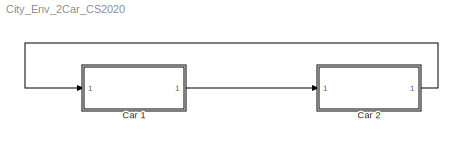
MODEL City_Env_2Car_CS2020
KIND model
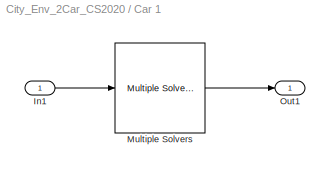
BLOCK [SubSystem] Car 1
  Ports = [1, 1]
  RequestExecContextInheritance = off
  SID = 113
BLOCK [Inport] Car 1/In1
  IconDisplay = Port number
  SID = 114
BLOCK [Reference] Car 1/Multiple Solvers  REF=Solver_SF/Multiple Solvers
  MultiThreadCoSim = auto
  Ports = [1, 1]
  Priority = 1
  Run_RTs = off
  SID = 116
  SIMFILE = <path>
  SourceBlock = Solver_SF/Multiple Solvers
  SourceType = Vehicle math model library
  StopMode_ind = Vehicle Model
  iVehicle = 1
  vs_scx = on
  vs_state_ind = Run
BLOCK [Outport] Car 1/Out1
  IconDisplay = Port number
  SID = 115
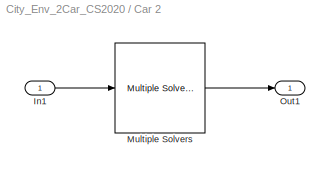
BLOCK [SubSystem] Car 2
  Ports = [1, 1]
  RequestExecContextInheritance = off
  SID = 117
BLOCK [Inport] Car 2/In1
  IconDisplay = Port number
  SID = 118
BLOCK [Reference] Car 2/Multiple Solvers  REF=Solver_SF/Multiple Solvers
  MultiThreadCoSim = auto
  Ports = [1, 1]
  Priority = 1
  Run_RTs = off
  SID = 119
  SIMFILE = <path>
  SourceBlock = Solver_SF/Multiple Solvers
  SourceType = Vehicle math model library
  StopMode_ind = Vehicle Model
  iVehicle = 2
  vs_scx = on
  vs_state_ind = Run
BLOCK [Outport] Car 2/Out1
  IconDisplay = Port number
  SID = 120
LINE Car 1/In1:1 -> Car 1/Multiple Solvers:1
LINE Car 1/Multiple Solvers:1 -> Car 1/Out1:1
LINE Car 1:1 -> Car 2:1
LINE Car 2/In1:1 -> Car 2/Multiple Solvers:1
LINE Car 2/Multiple Solvers:1 -> Car 2/Out1:1
LINE Car 2:1 -> Car 1:1
note: 2 file-system paths scrubbed to <path> (not preserved elsewhere — flat text is the only slx artifact)
